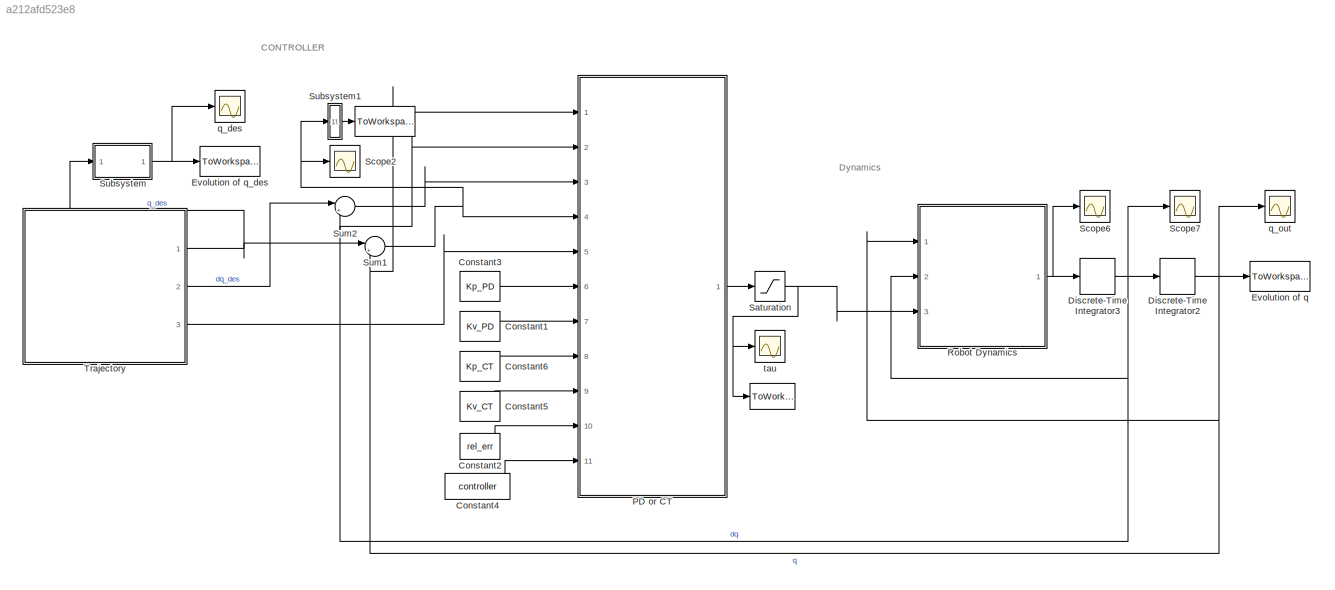
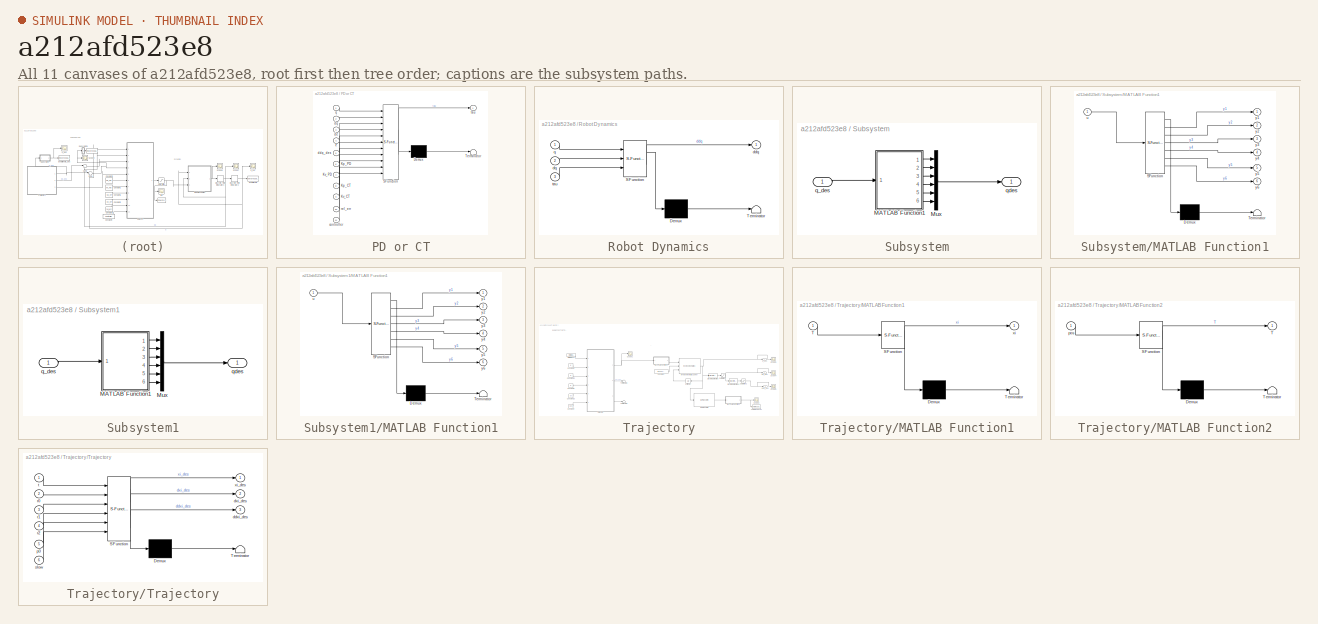
[diagram: thumbnail index - all 11 canvases of the model, root first then tree order]
MODEL slx_a212afd523e8
KIND model
CONFIG AbsTol = auto
CONFIG EnableMultiTasking = off
CONFIG FixedStep = auto
CONFIG MaxStep = auto
CONFIG MinStep = auto
CONFIG RelTol = 1e-6
CONFIG SampleTimeConstraint = Unconstrained
CONFIG SolverName = VariableStepAuto
CONFIG StartTime = 0.0
CONFIG StopTime = 200
BLOCK [ToWorkspace]    
  FixptAsFi = on
  MaxDataPoints = inf
  Ports = [1]
  SampleTime = -1
  SaveFormat = Timeseries
  VariableName = e_q_out
BLOCK [ToWorkspace]          
  FixptAsFi = on
  MaxDataPoints = inf
  Ports = [1]
  SampleTime = -1
  SaveFormat = Timeseries
  VariableName = tau_out
BLOCK [Constant] Constant1
  Value = Kv_PD
BLOCK [Constant] Constant2
  Value = rel_err
BLOCK [Constant] Constant3
  Value = Kp_PD
BLOCK [Constant] Constant4
  Value = controller
BLOCK [Constant] Constant5
  Value = Kv_CT
BLOCK [Constant] Constant6
  Value = Kp_CT
BLOCK [DiscreteIntegrator] Discrete-Time Integrator2
  ICPrevOutput = DiscIntNeverNeededParam
  ICPrevScaledInput = DiscIntNeverNeededParam
  InitialCondition = q0
  InitialConditionSetting = Auto
  Ports = [1, 1]
  SampleTime = -1
BLOCK [DiscreteIntegrator] Discrete-Time Integrator3
  ICPrevOutput = DiscIntNeverNeededParam
  ICPrevScaledInput = DiscIntNeverNeededParam
  InitialCondition = dq0
  InitialConditionSetting = Auto
  Ports = [1, 1]
  SampleTime = -1
BLOCK [ToWorkspace] Evolution of q
  FixptAsFi = on
  MaxDataPoints = inf
  Ports = [1]
  SampleTime = -1
  SaveFormat = Timeseries
  VariableName = q_out
BLOCK [ToWorkspace] Evolution of q_des
  FixptAsFi = on
  MaxDataPoints = inf
  Ports = [1]
  SampleTime = -1
  SaveFormat = Timeseries
  VariableName = q_des_out
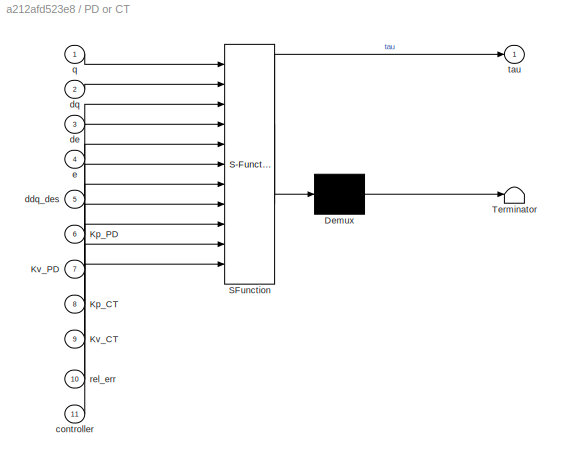
BLOCK [SubSystem] PD or CT
  ErrorFcn = Stateflow.Translate.translate
  PermitHierarchicalResolution = ExplicitOnly
  Ports = [11, 1]
  RequestExecContextInheritance = off
  SFBlockType = MATLAB Function
  TreatAsAtomicUnit = on
BLOCK [Demux] PD or CT/ Demux 
  Outputs = 1
  Ports = [1, 1]
BLOCK [S-Function] PD or CT/ SFunction 
  EnableBusSupport = on
  FunctionName = sf_sfun
  PortCounts = [11 2]
  Ports = [11, 2]
  SFcnIsStateOwnerBlock = off
  SFunctionDeploymentMode = off
  Tag = Stateflow S-Function 10
BLOCK [Terminator] PD or CT/ Terminator 
BLOCK [Inport] PD or CT/Kp_CT
  Port = 8
BLOCK [Inport] PD or CT/Kp_PD
  Port = 6
BLOCK [Inport] PD or CT/Kv_CT
  Port = 9
BLOCK [Inport] PD or CT/Kv_PD
  Port = 7
BLOCK [Inport] PD or CT/controller
  Port = 11
BLOCK [Inport] PD or CT/ddq_des
  Port = 5
BLOCK [Inport] PD or CT/de
  Port = 3
BLOCK [Inport] PD or CT/dq
  Port = 2
BLOCK [Inport] PD or CT/e
  Port = 4
BLOCK [Inport] PD or CT/q
BLOCK [Inport] PD or CT/rel_err
  Port = 10
BLOCK [Outport] PD or CT/tau
  VectorParamsAs1DForOutWhenUnconnected = off
BLOCK [SubSystem] Robot Dynamics
  ErrorFcn = Stateflow.Translate.translate
  PermitHierarchicalResolution = ExplicitOnly
  Ports = [3, 1]
  RequestExecContextInheritance = off
  SFBlockType = MATLAB Function
  TreatAsAtomicUnit = on
BLOCK [Demux] Robot Dynamics/ Demux 
  Outputs = 1
  Ports = [1, 1]
BLOCK [S-Function] Robot Dynamics/ SFunction 
  EnableBusSupport = on
  FunctionName = sf_sfun
  PortCounts = [3 2]
  Ports = [3, 2]
  SFcnIsStateOwnerBlock = off
  SFunctionDeploymentMode = off
  Tag = Stateflow S-Function 12
BLOCK [Terminator] Robot Dynamics/ Terminator 
BLOCK [Outport] Robot Dynamics/ddq
  VectorParamsAs1DForOutWhenUnconnected = off
BLOCK [Inport] Robot Dynamics/dq
  Port = 2
BLOCK [Inport] Robot Dynamics/q
BLOCK [Inport] Robot Dynamics/tau
  Port = 3
BLOCK [Saturate] Saturation
  LowerLimit = -100
  UpperLimit = 100
BLOCK [Scope] Scope2
  Floating = off
  NumInputPorts = 1
  Ports = [1]
  ScopeSpecificationString = Simulink.scopes.TimeScopeBlockCfg('CurrentConfiguration', extmgr.ConfigurationSet(extmgr.Configuration('Core','General UI',true),extmgr.Configuration('Core','Source UI',true),extmgr.Configuration('Sources','WiredSimulink',true,'DataLoggingVariableName','ScopeData5'),extmgr.Configuration('Visuals','Time Domain',true,'SerializedDisplays',{struct('MinYLimReal','-2.85467','MaxYLimReal','2.37474','YLab...<+1616ch>
BLOCK [Scope] Scope6
  Commented = on
  Floating = off
  NumInputPorts = 1
  Ports = [1]
  ScopeSpecificationString = Simulink.scopes.TimeScopeBlockCfg('CurrentConfiguration', extmgr.ConfigurationSet(extmgr.Configuration('Core','General UI',true),extmgr.Configuration('Core','Source UI',true),extmgr.Configuration('Sources','WiredSimulink',true,'DataLoggingVariableName','ScopeData2'),extmgr.Configuration('Visuals','Time Domain',true,'SerializedDisplays',{struct('MinYLimReal','-5596.78805','MaxYLimReal','5521.07963'...<+1567ch>
BLOCK [Scope] Scope7
  Commented = on
  Floating = off
  NumInputPorts = 1
  Ports = [1]
  ScopeSpecificationString = Simulink.scopes.TimeScopeBlockCfg('CurrentConfiguration', extmgr.ConfigurationSet(extmgr.Configuration('Core','General UI',true),extmgr.Configuration('Core','Source UI',true),extmgr.Configuration('Sources','WiredSimulink',true,'DataLoggingVariableName','ScopeData3'),extmgr.Configuration('Visuals','Time Domain',true,'SerializedDisplays',{struct('MinYLimReal','-21.23035','MaxYLimReal','51.35107','YL...<+1475ch>
BLOCK [SubSystem] Subsystem
  Ports = [1, 1]
  RequestExecContextInheritance = off
BLOCK [SubSystem] Subsystem/MATLAB Function1
  ErrorFcn = Stateflow.Translate.translate
  PermitHierarchicalResolution = ExplicitOnly
  Ports = [1, 6]
  RequestExecContextInheritance = off
  SFBlockType = MATLAB Function
  TreatAsAtomicUnit = on
BLOCK [Demux] Subsystem/MATLAB Function1/ Demux 
  Outputs = 1
  Ports = [1, 1]
BLOCK [S-Function] Subsystem/MATLAB Function1/ SFunction 
  EnableBusSupport = on
  FunctionName = sf_sfun
  PortCounts = [1 7]
  Ports = [1, 7]
  SFcnIsStateOwnerBlock = off
  SFunctionDeploymentMode = off
  Tag = Stateflow S-Function 4
BLOCK [Terminator] Subsystem/MATLAB Function1/ Terminator 
BLOCK [Inport] Subsystem/MATLAB Function1/u
BLOCK [Outport] Subsystem/MATLAB Function1/y1
BLOCK [Outport] Subsystem/MATLAB Function1/y2
  Port = 2
BLOCK [Outport] Subsystem/MATLAB Function1/y3
  Port = 3
BLOCK [Outport] Subsystem/MATLAB Function1/y4
  Port = 4
BLOCK [Outport] Subsystem/MATLAB Function1/y5
  Port = 5
BLOCK [Outport] Subsystem/MATLAB Function1/y6
  Port = 6
BLOCK [Mux] Subsystem/Mux
  DisplayOption = bar
  Inputs = 6
  Ports = [6, 1]
BLOCK [Inport] Subsystem/q_des
BLOCK [Outport] Subsystem/qdes
BLOCK [SubSystem] Subsystem1
  Ports = [1, 1]
  RequestExecContextInheritance = off
BLOCK [SubSystem] Subsystem1/MATLAB Function1
  ErrorFcn = Stateflow.Translate.translate
  PermitHierarchicalResolution = ExplicitOnly
  Ports = [1, 6]
  RequestExecContextInheritance = off
  SFBlockType = MATLAB Function
  TreatAsAtomicUnit = on
BLOCK [Demux] Subsystem1/MATLAB Function1/ Demux 
  Outputs = 1
  Ports = [1, 1]
BLOCK [S-Function] Subsystem1/MATLAB Function1/ SFunction 
  EnableBusSupport = on
  FunctionName = sf_sfun
  PortCounts = [1 7]
  Ports = [1, 7]
  SFcnIsStateOwnerBlock = off
  SFunctionDeploymentMode = off
  Tag = Stateflow S-Function 1
BLOCK [Terminator] Subsystem1/MATLAB Function1/ Terminator 
BLOCK [Inport] Subsystem1/MATLAB Function1/u
BLOCK [Outport] Subsystem1/MATLAB Function1/y1
BLOCK [Outport] Subsystem1/MATLAB Function1/y2
  Port = 2
BLOCK [Outport] Subsystem1/MATLAB Function1/y3
  Port = 3
BLOCK [Outport] Subsystem1/MATLAB Function1/y4
  Port = 4
BLOCK [Outport] Subsystem1/MATLAB Function1/y5
  Port = 5
BLOCK [Outport] Subsystem1/MATLAB Function1/y6
  Port = 6
BLOCK [Mux] Subsystem1/Mux
  DisplayOption = bar
  Inputs = 6
  Ports = [6, 1]
BLOCK [Inport] Subsystem1/q_des
BLOCK [Outport] Subsystem1/qdes
BLOCK [Sum] Sum1
  Inputs = |+-
  Ports = [2, 1]
BLOCK [Sum] Sum2
  Inputs = |+-
  Ports = [2, 1]
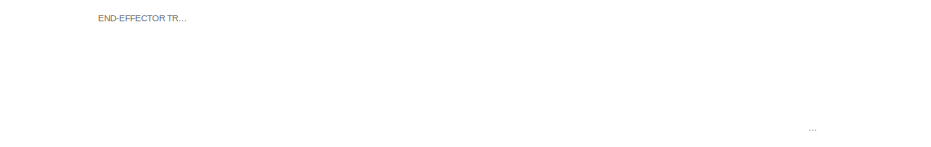
[diagram: Trajectory - part 1/2, top left region]
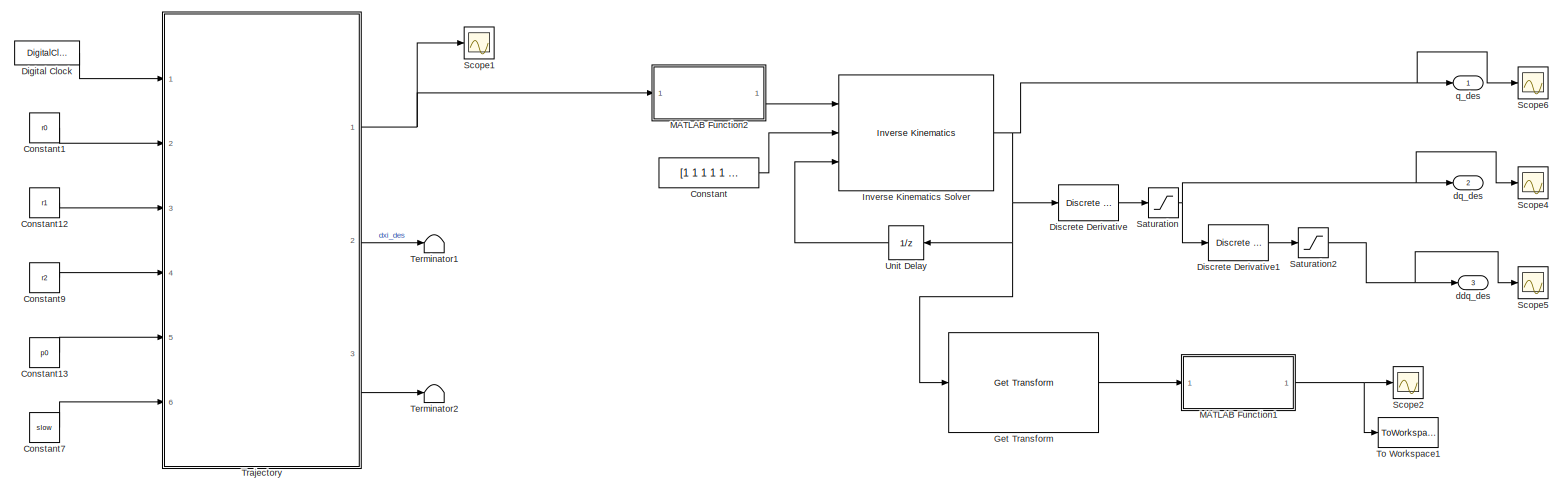
[diagram: Trajectory - part 2/2, most of the canvas]
BLOCK [SubSystem] Trajectory
  Ports = [0, 3]
  RequestExecContextInheritance = off
BLOCK [Constant] Trajectory/Constant
  Value = [1 1 1 1 1 1]
BLOCK [Constant] Trajectory/Constant1
  Value = r0
BLOCK [Constant] Trajectory/Constant12
  Value = r1
BLOCK [Constant] Trajectory/Constant13
  Value = p0
BLOCK [Constant] Trajectory/Constant7
  Value = slow
BLOCK [Constant] Trajectory/Constant9
  Value = r2
BLOCK [DigitalClock] Trajectory/Digital Clock
  SampleTime = 0.01
BLOCK [Reference] Trajectory/Discrete Derivative  REF=simulink/Discrete/Discrete Derivative
  Ports = [1, 1]
  SourceBlock = simulink/Discrete/Discrete Derivative
  SourceProductBaseCode = SL
  SourceType = Discrete Derivative
BLOCK [Reference] Trajectory/Discrete Derivative1  REF=simulink/Discrete/Discrete Derivative
  Ports = [1, 1]
  SourceBlock = simulink/Discrete/Discrete Derivative
  SourceProductBaseCode = SL
  SourceType = Discrete Derivative
BLOCK [Reference] Trajectory/Get Transform  REF=robotmaniplib/Get Transform
  Ports = [1, 1]
  SourceBlock = robotmaniplib/Get Transform
  SourceProductBaseCode = RO
  SourceType = Get Transform
BLOCK [Reference] Trajectory/Inverse Kinematics Solver  REF=robotmaniplib/Inverse Kinematics
  Ports = [3, 1]
  SourceBlock = robotmaniplib/Inverse Kinematics
  SourceProductBaseCode = RO
  SourceType = Inverse Kinematics
BLOCK [SubSystem] Trajectory/MATLAB Function1
  ErrorFcn = Stateflow.Translate.translate
  PermitHierarchicalResolution = ExplicitOnly
  Ports = [1, 1]
  RequestExecContextInheritance = off
  SFBlockType = MATLAB Function
  TreatAsAtomicUnit = on
BLOCK [Demux] Trajectory/MATLAB Function1/ Demux 
  Outputs = 1
  Ports = [1, 1]
BLOCK [S-Function] Trajectory/MATLAB Function1/ SFunction 
  EnableBusSupport = on
  FunctionName = sf_sfun
  PortCounts = [1 2]
  Ports = [1, 2]
  SFcnIsStateOwnerBlock = off
  SFunctionDeploymentMode = off
  Tag = Stateflow S-Function 2
BLOCK [Terminator] Trajectory/MATLAB Function1/ Terminator 
BLOCK [Inport] Trajectory/MATLAB Function1/T
BLOCK [Outport] Trajectory/MATLAB Function1/xi
BLOCK [SubSystem] Trajectory/MATLAB Function2
  ErrorFcn = Stateflow.Translate.translate
  PermitHierarchicalResolution = ExplicitOnly
  Ports = [1, 1]
  RequestExecContextInheritance = off
  SFBlockType = MATLAB Function
  TreatAsAtomicUnit = on
BLOCK [Demux] Trajectory/MATLAB Function2/ Demux 
  Outputs = 1
  Ports = [1, 1]
BLOCK [S-Function] Trajectory/MATLAB Function2/ SFunction 
  EnableBusSupport = on
  FunctionName = sf_sfun
  PortCounts = [1 2]
  Ports = [1, 2]
  SFcnIsStateOwnerBlock = off
  SFunctionDeploymentMode = off
  Tag = Stateflow S-Function 11
BLOCK [Terminator] Trajectory/MATLAB Function2/ Terminator 
BLOCK [Outport] Trajectory/MATLAB Function2/T
BLOCK [Inport] Trajectory/MATLAB Function2/pos
BLOCK [Saturate] Trajectory/Saturation
BLOCK [Saturate] Trajectory/Saturation2
  LowerLimit = -0.1
  UpperLimit = 0.1
BLOCK [Scope] Trajectory/Scope1
  Commented = on
  Floating = off
  NumInputPorts = 1
  Ports = [1]
  ScopeSpecificationString = Simulink.scopes.TimeScopeBlockCfg('CurrentConfiguration', extmgr.ConfigurationSet(extmgr.Configuration('Core','General UI',true),extmgr.Configuration('Core','Source UI',true),extmgr.Configuration('Sources','WiredSimulink',true,'DataLoggingVariableName','ScopeData1'),extmgr.Configuration('Visuals','Time Domain',true,'SerializedDisplays',{struct('MinYLimReal','-0.19635','MaxYLimReal','1.76715','YLab...<+1706ch>
BLOCK [Scope] Trajectory/Scope2
  Commented = on
  Floating = off
  NumInputPorts = 1
  Ports = [1]
  ScopeSpecificationString = Simulink.scopes.TimeScopeBlockCfg('CurrentConfiguration', extmgr.ConfigurationSet(extmgr.Configuration('Core','General UI',true),extmgr.Configuration('Core','Source UI',true),extmgr.Configuration('Sources','WiredSimulink',true,'DataLoggingVariableName','ScopeData1'),extmgr.Configuration('Visuals','Time Domain',true,'SerializedDisplays',{struct('MinYLimReal','-0.19635','MaxYLimReal','1.76715','YLab...<+1688ch>
BLOCK [Scope] Trajectory/Scope4
  Commented = on
  Floating = off
  NumInputPorts = 1
  Ports = [1]
  ScopeSpecificationString = Simulink.scopes.TimeScopeBlockCfg('CurrentConfiguration', extmgr.ConfigurationSet(extmgr.Configuration('Core','General UI',true),extmgr.Configuration('Core','Source UI',true),extmgr.Configuration('Sources','WiredSimulink',true,'DataLoggingVariableName','ScopeData2'),extmgr.Configuration('Visuals','Time Domain',true,'SerializedDisplays',{struct('MinYLimReal','-2.48147','MaxYLimReal','2.33327','YLab...<+1655ch>
BLOCK [Scope] Trajectory/Scope5
  Commented = on
  Floating = off
  NumInputPorts = 1
  Ports = [1]
  ScopeSpecificationString = Simulink.scopes.TimeScopeBlockCfg('CurrentConfiguration', extmgr.ConfigurationSet(extmgr.Configuration('Core','General UI',true),extmgr.Configuration('Core','Source UI',true),extmgr.Configuration('Sources','WiredSimulink',true,'DataLoggingVariableName','ScopeData3'),extmgr.Configuration('Visuals','Time Domain',true,'SerializedDisplays',{struct('MinYLimReal','-0.125','MaxYLimReal','0.125','YLabelRe...<+1672ch>
BLOCK [Scope] Trajectory/Scope6
  Commented = on
  Floating = off
  NumInputPorts = 1
  Ports = [1]
  ScopeSpecificationString = Simulink.scopes.TimeScopeBlockCfg('CurrentConfiguration', extmgr.ConfigurationSet(extmgr.Configuration('Core','General UI',true),extmgr.Configuration('Core','Source UI',true),extmgr.Configuration('Sources','WiredSimulink',true,'DataLoggingVariableName','ScopeData3'),extmgr.Configuration('Visuals','Time Domain',true,'SerializedDisplays',{struct('MinYLimReal','-2.87521','MaxYLimReal','1.78731','YLab...<+1742ch>
BLOCK [Terminator] Trajectory/Terminator1
BLOCK [Terminator] Trajectory/Terminator2
BLOCK [ToWorkspace] Trajectory/To Workspace1
  FixptAsFi = on
  MaxDataPoints = inf
  Ports = [1]
  SampleTime = -1
  SaveFormat = Timeseries
  VariableName = xi_des_out
BLOCK [SubSystem] Trajectory/Trajectory
  ErrorFcn = Stateflow.Translate.translate
  PermitHierarchicalResolution = ExplicitOnly
  Ports = [6, 3]
  RequestExecContextInheritance = off
  SFBlockType = MATLAB Function
  TreatAsAtomicUnit = on
BLOCK [Demux] Trajectory/Trajectory/ Demux 
  Outputs = 1
  Ports = [1, 1]
BLOCK [S-Function] Trajectory/Trajectory/ SFunction 
  EnableBusSupport = on
  FunctionName = sf_sfun
  PortCounts = [6 4]
  Ports = [6, 4]
  SFcnIsStateOwnerBlock = off
  SFunctionDeploymentMode = off
  Tag = Stateflow S-Function 6
BLOCK [Terminator] Trajectory/Trajectory/ Terminator 
BLOCK [Outport] Trajectory/Trajectory/ddxi_des
  Port = 3
  VectorParamsAs1DForOutWhenUnconnected = off
BLOCK [Outport] Trajectory/Trajectory/dxi_des
  Port = 2
  VectorParamsAs1DForOutWhenUnconnected = off
BLOCK [Inport] Trajectory/Trajectory/p0
  Port = 5
BLOCK [Inport] Trajectory/Trajectory/r0
  Port = 2
BLOCK [Inport] Trajectory/Trajectory/r1
  Port = 3
BLOCK [Inport] Trajectory/Trajectory/r2
  Port = 4
BLOCK [Inport] Trajectory/Trajectory/slow
  Port = 6
BLOCK [Inport] Trajectory/Trajectory/t
BLOCK [Outport] Trajectory/Trajectory/xi_des
  VectorParamsAs1DForOutWhenUnconnected = off
BLOCK [UnitDelay] Trajectory/Unit Delay
  HasFrameUpgradeWarning = on
  SampleTime = -1
BLOCK [Outport] Trajectory/ddq_des
  Port = 3
  VectorParamsAs1DForOutWhenUnconnected = off
BLOCK [Outport] Trajectory/dq_des
  Port = 2
  VectorParamsAs1DForOutWhenUnconnected = off
BLOCK [Outport] Trajectory/q_des
  VectorParamsAs1DForOutWhenUnconnected = off
BLOCK [Scope] q_des
  Floating = off
  NumInputPorts = 1
  Ports = [1]
  ScopeSpecificationString = Simulink.scopes.TimeScopeBlockCfg('CurrentConfiguration', extmgr.ConfigurationSet(extmgr.Configuration('Core','General UI',true),extmgr.Configuration('Core','Source UI',true),extmgr.Configuration('Sources','WiredSimulink',true,'DataLoggingVariableName','ScopeData1'),extmgr.Configuration('Visuals','Time Domain',true,'SerializedDisplays',{struct('MinYLimReal','-178.50512','MaxYLimReal','21.75264','Y...<+1634ch>
BLOCK [Scope] q_out
  Floating = off
  NumInputPorts = 1
  Ports = [1]
  ScopeSpecificationString = Simulink.scopes.TimeScopeBlockCfg('CurrentConfiguration', extmgr.ConfigurationSet(extmgr.Configuration('Core','General UI',true),extmgr.Configuration('Core','Source UI',true),extmgr.Configuration('Sources','WiredSimulink',true,'DataLoggingVariableName','ScopeData4'),extmgr.Configuration('Visuals','Time Domain',true,'SerializedDisplays',{struct('MinYLimReal','-2.40129','MaxYLimReal','1.3537','YLabe...<+1600ch>
BLOCK [Scope] tau
  Floating = off
  NumInputPorts = 1
  Ports = [1]
  ScopeSpecificationString = Simulink.scopes.TimeScopeBlockCfg('CurrentConfiguration', extmgr.ConfigurationSet(extmgr.Configuration('Core','General UI',true),extmgr.Configuration('Core','Source UI',true),extmgr.Configuration('Sources','WiredSimulink',true,'DataLoggingVariableName','ScopeData7'),extmgr.Configuration('Visuals','Time Domain',true,'SerializedDisplays',{struct('MinYLimReal','-1812.72194','MaxYLimReal','1859.79172'...<+1539ch>
ANNOTATION (root): CONTROLLER
ANNOTATION (root): Dynamics
ANNOTATION Trajectory: INVERSE KINEMATICS
ANNOTATION Trajectory: END-EFFECTOR TRAJECTORY
LINE Constant1:1 -> PD or CT:7
LINE Constant2:1 -> PD or CT:10
LINE Constant3:1 -> PD or CT:6
LINE Constant4:1 -> PD or CT:11
LINE Constant5:1 -> PD or CT:9
LINE Constant6:1 -> PD or CT:8
NET Discrete-Time Integrator2:1 -> Evolution of q:1, PD or CT:1, Robot Dynamics:1, Sum1:2, q_out:1
NET Discrete-Time Integrator3:1 -> Discrete-Time Integrator2:1, PD or CT:2, Robot Dynamics:2, Scope7:1, Sum2:2
LINE PD or CT:1 -> Saturation:1
NET Robot Dynamics:1 -> Discrete-Time Integrator3:1, Scope6:1
NET Saturation:1 ->          :1, Robot Dynamics:3, tau:1
LINE Subsystem/MATLAB Function1:1 -> Subsystem/Mux:1
LINE Subsystem/MATLAB Function1:2 -> Subsystem/Mux:2
LINE Subsystem/MATLAB Function1:3 -> Subsystem/Mux:3
LINE Subsystem/MATLAB Function1:4 -> Subsystem/Mux:4
LINE Subsystem/MATLAB Function1:5 -> Subsystem/Mux:5
LINE Subsystem/MATLAB Function1:6 -> Subsystem/Mux:6
LINE Subsystem/Mux:1 -> Subsystem/qdes:1
LINE Subsystem/q_des:1 -> Subsystem/MATLAB Function1:1
LINE Subsystem1/MATLAB Function1:1 -> Subsystem1/Mux:1
LINE Subsystem1/MATLAB Function1:2 -> Subsystem1/Mux:2
LINE Subsystem1/MATLAB Function1:3 -> Subsystem1/Mux:3
LINE Subsystem1/MATLAB Function1:4 -> Subsystem1/Mux:4
LINE Subsystem1/MATLAB Function1:5 -> Subsystem1/Mux:5
LINE Subsystem1/MATLAB Function1:6 -> Subsystem1/Mux:6
LINE Subsystem1/Mux:1 -> Subsystem1/qdes:1
LINE Subsystem1/q_des:1 -> Subsystem1/MATLAB Function1:1
LINE Subsystem1:1 ->    :1
NET Subsystem:1 -> Evolution of q_des:1, q_des:1
NET Sum1:1 -> PD or CT:4, Scope2:1, Subsystem1:1
LINE Sum2:1 -> PD or CT:3
LINE Trajectory/Constant12:1 -> Trajectory/Trajectory:3
LINE Trajectory/Constant13:1 -> Trajectory/Trajectory:5
LINE Trajectory/Constant1:1 -> Trajectory/Trajectory:2
LINE Trajectory/Constant7:1 -> Trajectory/Trajectory:6
LINE Trajectory/Constant9:1 -> Trajectory/Trajectory:4
LINE Trajectory/Constant:1 -> Trajectory/Inverse Kinematics Solver:2
LINE Trajectory/Digital Clock:1 -> Trajectory/Trajectory:1
LINE Trajectory/Discrete Derivative1:1 -> Trajectory/Saturation2:1
LINE Trajectory/Discrete Derivative:1 -> Trajectory/Saturation:1
LINE Trajectory/Get Transform:1 -> Trajectory/MATLAB Function1:1
NET Trajectory/Inverse Kinematics Solver:1 -> Trajectory/Discrete Derivative:1, Trajectory/Get Transform:1, Trajectory/Scope6:1, Trajectory/Unit Delay:1, Trajectory/q_des:1
NET Trajectory/MATLAB Function1:1 -> Trajectory/Scope2:1, Trajectory/To Workspace1:1
LINE Trajectory/MATLAB Function2:1 -> Trajectory/Inverse Kinematics Solver:1
NET Trajectory/Saturation2:1 -> Trajectory/Scope5:1, Trajectory/ddq_des:1
NET Trajectory/Saturation:1 -> Trajectory/Discrete Derivative1:1, Trajectory/Scope4:1, Trajectory/dq_des:1
NET Trajectory/Trajectory:1 -> Trajectory/MATLAB Function2:1, Trajectory/Scope1:1
LINE Trajectory/Trajectory:2 -> Trajectory/Terminator1:1
LINE Trajectory/Trajectory:3 -> Trajectory/Terminator2:1
LINE Trajectory/Unit Delay:1 -> Trajectory/Inverse Kinematics Solver:3
NET Trajectory:1 -> Subsystem:1, Sum1:1
LINE Trajectory:2 -> Sum2:1
LINE Trajectory:3 -> PD or CT:5
note: NET lines group one-source signal fan-out (src -> all destinations, sorted); 1:1 wires keep LINE
CHART Subsystem1/MATLAB Function1 states=1 transitions=1
  STATE_LABEL 'eML_blk_kernel()'
  STATE_LABEL 'SCRIPT:\nfunction [y1,y2,y3,y4,y5,y6] = fcn(u)\n\ny1 = squeeze(u(1));\ny2 = squeeze(u(2));\ny3 = squeeze(u(3));\ny4 = squeeze(u(4));\ny5 = squeeze(u(5));\ny6 = squeeze(u(6));\n'
CHART Trajectory/MATLAB Function1 states=1 transitions=1
  STATE_LABEL 'eML_blk_kernel()'
  STATE_LABEL "SCRIPT:\nfunction xi   = forward_kinematics(T)\n\n%   [T,phi,theta,psi] = UR_FK(q);\n    \n    R = T(1:3,1:3);\n    eulXYZ = rotm2eul(R, 'XYZ');\n    phi   = eulXYZ(1);\n    theta = eulXYZ(2);\n    psi   = eulXYZ(3);\n    \n    xi = [T(1:3,4);phi;theta;psi];\n\nend"
CHART Subsystem/MATLAB Function1 states=1 transitions=1
  STATE_LABEL 'eML_blk_kernel()'
  STATE_LABEL 'SCRIPT:\nfunction [y1,y2,y3,y4,y5,y6] = fcn(u)\n\ny1 = squeeze(u(1));\ny2 = squeeze(u(2));\ny3 = squeeze(u(3));\ny4 = squeeze(u(4));\ny5 = squeeze(u(5));\ny6 = squeeze(u(6));\n'
CHART Trajectory/Trajectory states=1 transitions=1
  STATE_LABEL 'eML_blk_kernel()'
  STATE_LABEL 'SCRIPT:\nfunction [xi_des, dxi_des, ddxi_des] = trajectory(t,r0,r1,r2,p0,slow)\n\nk=slow;\n\nxi_des =   [r0*sin(t/(2*k))       ; r1*sin(t/k)     ; r2*cos(t/k)     ;0;0;0] + p0;\ndxi_des =  [r0/2/k*cos(t/(2*k))   ; r1/k*cos(t/k)   ; -r2/k*sin(t/k)  ;0;0;0];\nddxi_des = [-r0/4/k/k*sin(t/(2*k)); -r1/k/k*sin(t/k); -r2/k/k*cos(t/k);0;0;0];\n'
CHART PD or CT states=1 transitions=1
  STATE_LABEL 'eML_blk_kernel()'
  STATE_LABEL 'SCRIPT:\nfunction tau = pd_or_ct(q, dq, de, e, ddq_des, Kp_PD, Kv_PD, Kp_CT, Kv_CT, rel_err,controller)\n\n    g = 9.81;\n    \n    % Get dynamic matrices\n    M = UR_B(q);\n    C = UR_C(q, dq);\n    G = UR_G(q,g);\n    \n    % Adding uncertainty\n    M = M.*(1 + rel_err);\n    C = C.*(1 + rel_err);\n    G = G.*(1 + rel_err);\n    \n    if controller == 1\n        % PD law\n        tau = Kv_PD*de + Kp_PD*e + G;\n  ...<+112ch>'
CHART Trajectory/MATLAB Function2 states=1 transitions=1
  STATE_LABEL 'eML_blk_kernel()'
  STATE_LABEL "SCRIPT:\nfunction T = homogeneus_transf(pos)\n\nR=eye(3);\nT=eye(4);\n\n% Use a XYZ parametrization for pose determination\n\n% R = eul2rotm([pos(4);pos(5);pos(6)], 'XYZ');\n\nphi   = pos(4);\ntheta = pos(5);\npsi   = pos(6);\n\nR = [                              cos(psi)*cos(theta),                             -cos(theta)*sin(psi),           sin(theta) ;\n     cos(phi)*sin(psi) + cos(psi)*sin(phi)*sin(theta), c...<+286ch>"
CHART Robot Dynamics states=1 transitions=1
  STATE_LABEL 'eML_blk_kernel()'
  STATE_LABEL 'SCRIPT:\nfunction ddq = inverse_dynamics(q, dq, tau)\n    \n    g = 9.81;\n    \n    % Get dynamic matrices\n    M = UR_B(q);\n    C = UR_C(q, dq);\n    G = UR_G(q,g);\n    \n    ddq = pinv(M)*(tau - C*dq - G);\n\nend\n\n\n\n'
CHART  states=0 transitions=0
CHART  states=0 transitions=0
CHART  states=0 transitions=0
CHART  states=0 transitions=0
CHART  states=0 transitions=0
CHART  states=0 transitions=0
CHART  states=0 transitions=0
